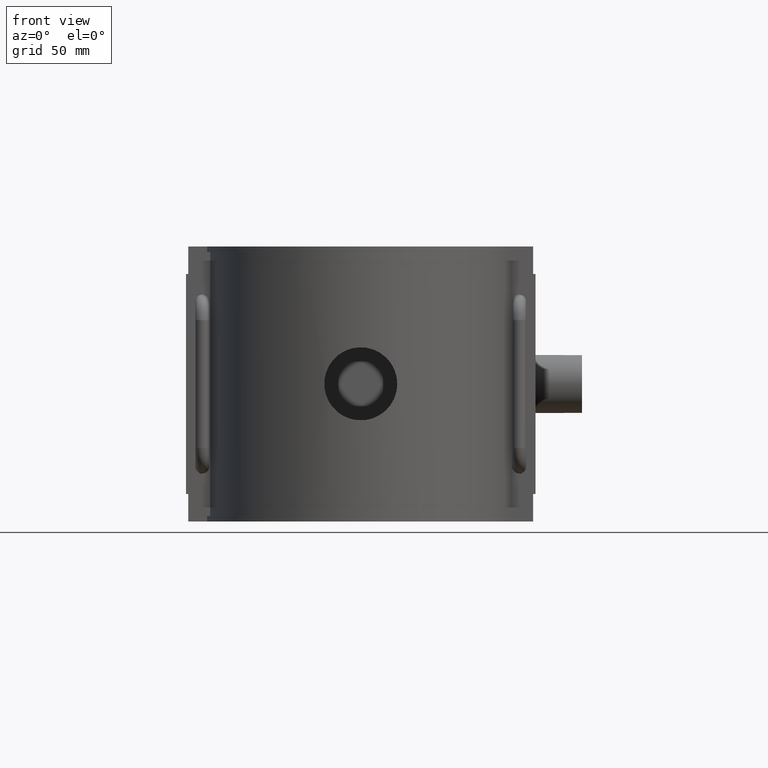
[diagram: clean part render]
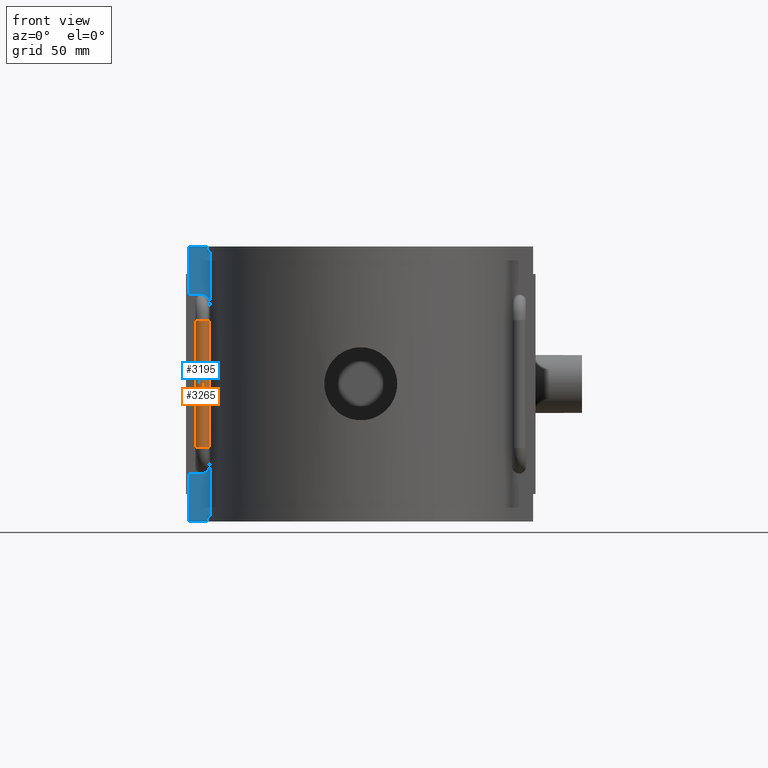
[diagram: same view with the hole feature highlighted: cylindrical wall and planar end face, labeled with their STEP entity ids]
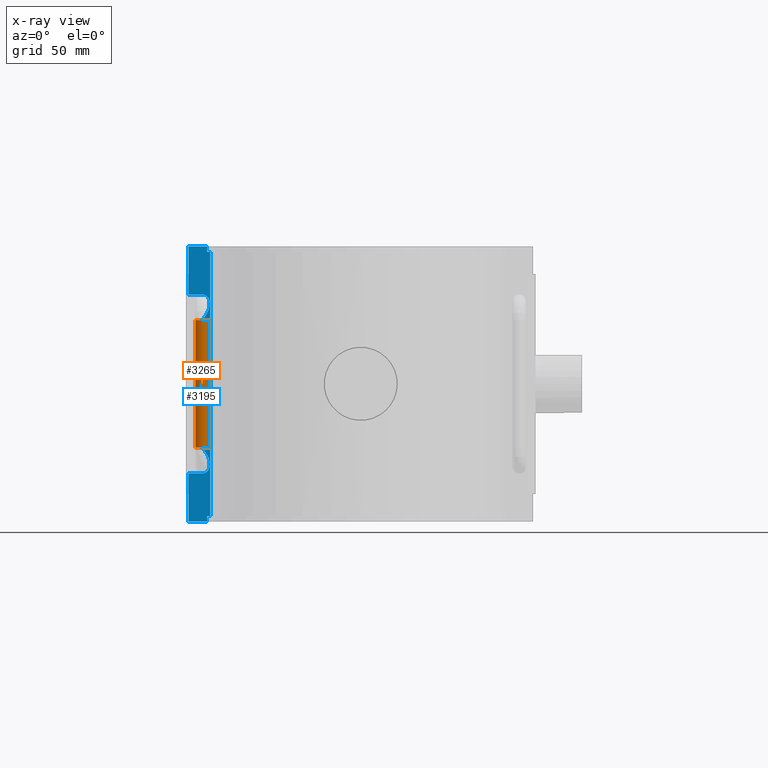
[diagram: x-ray of the same camera — body ghosted, the hole faces saturated]
A machine part, front view. The highlighted faces form one hole feature of diameter 6 mm: the cylindrical wall (entity #3265, orange) and its adjacent planar end face (entity #3195, blue) — they share a circular edge in the B-rep.
The next image is the same camera in x-ray (body ghosted, the hole faces saturated) — the bore reads through the body.
Wall:
#121=LINE('',#5470,#408);
#408=VECTOR('',#3915,54.8);
#805=CIRCLE('',#3509,3.);
#809=CIRCLE('',#3514,3.);
#1023=FACE_OUTER_BOUND('',#1249,.T.);
#1249=EDGE_LOOP('',(#2772,#2773,#2774,#2775));
#1487=VERTEX_POINT('',#5456);
#1488=VERTEX_POINT('',#5469);
#1843=EDGE_CURVE('',#1488,#1487,#121,.T.);
#2006=EDGE_CURVE('',#1488,#1488,#805,.T.);
#2016=EDGE_CURVE('',#1487,#1487,#809,.T.);
#2772=ORIENTED_EDGE('',*,*,#2016,.F.);
#2773=ORIENTED_EDGE('',*,*,#1843,.F.);
#2774=ORIENTED_EDGE('',*,*,#2006,.T.);
#2775=ORIENTED_EDGE('',*,*,#1843,.T.);
#3122=CYLINDRICAL_SURFACE('',#3540,3.);
#3265=ADVANCED_FACE('',(#1023),#3122,.T.);
#3509=AXIS2_PLACEMENT_3D('',#6191,#4185,#4186);
#3514=AXIS2_PLACEMENT_3D('',#6269,#4195,#4196);
#3540=AXIS2_PLACEMENT_3D('',#6352,#4261,#4262);
#3915=DIRECTION('',(0.,-1.62076353959877E-16,1.));
#4185=DIRECTION('center_axis',(0.,6.12323399573677E-17,1.));
#4186=DIRECTION('ref_axis',(1.,0.,0.));
#4195=DIRECTION('center_axis',(0.,6.12323399573677E-17,1.));
#4196=DIRECTION('ref_axis',(1.,0.,0.));
#4261=DIRECTION('center_axis',(0.,-1.62076353959877E-16,1.));
#4262=DIRECTION('ref_axis',(1.,0.,0.));
#5456=CARTESIAN_POINT('',(-68.,-13.75,27.4));
#5469=CARTESIAN_POINT('',(-68.,-13.75,-27.4));
#5470=CARTESIAN_POINT('',(-68.,-13.75,27.4));
#6191=CARTESIAN_POINT('Origin',(-68.,-16.7499999999993,-27.4));
#6269=CARTESIAN_POINT('Origin',(-68.,-16.7499999999993,27.4));
#6352=CARTESIAN_POINT('Origin',(-68.,-16.7499999999993,27.4));
End face:
#108=LINE('',#5426,#395);
#109=LINE('',#5429,#396);
#115=LINE('',#5443,#402);
#116=LINE('',#5445,#403);
#117=LINE('',#5447,#404);
#118=LINE('',#5449,#405);
#119=LINE('',#5451,#406);
#120=LINE('',#5453,#407);
#121=LINE('',#5470,#408);
#122=LINE('',#5487,#409);
#123=LINE('',#5489,#410);
#124=LINE('',#5490,#411);
#395=VECTOR('',#3892,2.36);
#396=VECTOR('',#3895,1.34901356519471);
#402=VECTOR('',#3907,113.28);
#403=VECTOR('',#3908,1.34901356519471);
#404=VECTOR('',#3909,2.36);
#405=VECTOR('',#3910,8.09916616612503);
#406=VECTOR('',#3911,20.6);
#407=VECTOR('',#3912,6.02433467297777);
#408=VECTOR('',#3915,54.8);
#409=VECTOR('',#3918,6.02433467297777);
#410=VECTOR('',#3919,20.6);
#411=VECTOR('',#3920,8.09916616612503);
#645=PLANE('',#3429);
#775=CIRCLE('',#3430,3.);
#776=CIRCLE('',#3431,3.);
#953=FACE_OUTER_BOUND('',#1153,.T.);
#1153=EDGE_LOOP('',(#2420,#2421,#2422,#2423,#2424,#2425,#2426,#2427,#2428,
#2429,#2430,#2431,#2432,#2433,#2434,#2435));
#1344=B_SPLINE_CURVE_WITH_KNOTS('',3,(#5457,#5458,#5459,#5460,#5461,#5462,
#5463,#5464,#5465,#5466,#5467,#5468),.UNSPECIFIED.,.F.,.F.,(4,2,2,2,2,4),
(1.5541826746921,1.64143836729109,1.76844964601288,1.89546092473467,2.1009420105833,
2.30642309643193),.UNSPECIFIED.);
#1345=B_SPLINE_CURVE_WITH_KNOTS('',3,(#5472,#5473,#5474,#5475,#5476,#5477,
#5478,#5479,#5480,#5481,#5482,#5483),.UNSPECIFIED.,.F.,.F.,(4,2,2,2,2,4),
(0.,0.205481085848628,0.410962171697256,0.537973450419046,0.664984729140836,
0.752240421739825),.UNSPECIFIED.);
#1471=VERTEX_POINT('',#5419);
#1474=VERTEX_POINT('',#5424);
#1475=VERTEX_POINT('',#5428);
#1480=VERTEX_POINT('',#5442);
#1481=VERTEX_POINT('',#5444);
#1482=VERTEX_POINT('',#5446);
#1483=VERTEX_POINT('',#5448);
#1484=VERTEX_POINT('',#5450);
#1485=VERTEX_POINT('',#5452);
#1486=VERTEX_POINT('',#5454);
#1487=VERTEX_POINT('',#5456);
#1488=VERTEX_POINT('',#5469);
#1489=VERTEX_POINT('',#5471);
#1490=VERTEX_POINT('',#5484);
#1491=VERTEX_POINT('',#5486);
#1492=VERTEX_POINT('',#5488);
#1827=EDGE_CURVE('',#1471,#1474,#108,.T.);
#1828=EDGE_CURVE('',#1474,#1475,#109,.T.);
#1835=EDGE_CURVE('',#1475,#1480,#115,.T.);
#1836=EDGE_CURVE('',#1480,#1481,#116,.T.);
#1837=EDGE_CURVE('',#1481,#1482,#117,.T.);
#1838=EDGE_CURVE('',#1483,#1482,#118,.T.);
#1839=EDGE_CURVE('',#1484,#1483,#119,.T.);
#1840=EDGE_CURVE('',#1484,#1485,#120,.T.);
#1841=EDGE_CURVE('',#1485,#1486,#775,.T.);
#1842=EDGE_CURVE('',#1486,#1487,#1344,.T.);
#1843=EDGE_CURVE('',#1488,#1487,#121,.T.);
#1844=EDGE_CURVE('',#1488,#1489,#1345,.T.);
#1845=EDGE_CURVE('',#1489,#1490,#776,.T.);
#1846=EDGE_CURVE('',#1490,#1491,#122,.T.);
#1847=EDGE_CURVE('',#1492,#1491,#123,.T.);
#1848=EDGE_CURVE('',#1471,#1492,#124,.T.);
#2420=ORIENTED_EDGE('',*,*,#1827,.T.);
#2421=ORIENTED_EDGE('',*,*,#1828,.T.);
#2422=ORIENTED_EDGE('',*,*,#1835,.T.);
#2423=ORIENTED_EDGE('',*,*,#1836,.T.);
#2424=ORIENTED_EDGE('',*,*,#1837,.T.);
#2425=ORIENTED_EDGE('',*,*,#1838,.F.);
#2426=ORIENTED_EDGE('',*,*,#1839,.F.);
#2427=ORIENTED_EDGE('',*,*,#1840,.T.);
#2428=ORIENTED_EDGE('',*,*,#1841,.T.);
#2429=ORIENTED_EDGE('',*,*,#1842,.T.);
#2430=ORIENTED_EDGE('',*,*,#1843,.F.);
#2431=ORIENTED_EDGE('',*,*,#1844,.T.);
#2432=ORIENTED_EDGE('',*,*,#1845,.T.);
#2433=ORIENTED_EDGE('',*,*,#1846,.T.);
#2434=ORIENTED_EDGE('',*,*,#1847,.F.);
#2435=ORIENTED_EDGE('',*,*,#1848,.F.);
#3195=ADVANCED_FACE('',(#953),#645,.T.);
#3429=AXIS2_PLACEMENT_3D('',#5441,#3905,#3906);
#3430=AXIS2_PLACEMENT_3D('',#5455,#3913,#3914);
#3431=AXIS2_PLACEMENT_3D('',#5485,#3916,#3917);
#3892=DIRECTION('',(0.,0.,1.));
#3895=DIRECTION('',(1.,0.,0.));
#3905=DIRECTION('center_axis',(0.,-1.,0.));
#3906=DIRECTION('ref_axis',(1.,0.,0.));
#3907=DIRECTION('',(0.,0.,1.));
#3908=DIRECTION('',(-1.,0.,0.));
#3909=DIRECTION('',(0.,0.,1.));
#3910=DIRECTION('',(1.,0.,0.));
#3911=DIRECTION('',(0.,0.,1.));
#3912=DIRECTION('',(1.,0.,-7.37158929503087E-16));
#3913=DIRECTION('center_axis',(0.,1.,0.));
#3914=DIRECTION('ref_axis',(-1.,0.,0.));
#3915=DIRECTION('',(0.,-1.62076353959877E-16,1.));
#3916=DIRECTION('center_axis',(0.,1.,0.));
#3917=DIRECTION('ref_axis',(-1.,0.,0.));
#3918=DIRECTION('',(-1.,0.,0.));
#3919=DIRECTION('',(0.,0.,1.));
#3920=DIRECTION('',(-1.,0.,0.));
#5419=CARTESIAN_POINT('',(-65.900833833875,-13.75,-59.));
#5424=CARTESIAN_POINT('',(-65.900833833875,-13.75,-56.64));
#5426=CARTESIAN_POINT('',(-65.900833833875,-13.75,-59.));
#5428=CARTESIAN_POINT('',(-64.5518202686803,-13.75,-56.64));
#5429=CARTESIAN_POINT('',(-37.,-13.75,-56.64));
#5441=CARTESIAN_POINT('Origin',(-74.,-13.75,0.));
#5442=CARTESIAN_POINT('',(-64.5518202686803,-13.75,56.64));
#5443=CARTESIAN_POINT('',(-64.5518202686803,-13.75,0.));
#5444=CARTESIAN_POINT('',(-65.900833833875,-13.75,56.64));
#5445=CARTESIAN_POINT('',(-37.,-13.75,56.64));
#5446=CARTESIAN_POINT('',(-65.900833833875,-13.75,59.));
#5447=CARTESIAN_POINT('',(-65.900833833875,-13.75,59.));
#5448=CARTESIAN_POINT('',(-74.,-13.75,59.));
#5449=CARTESIAN_POINT('',(-74.,-13.75,59.));
#5450=CARTESIAN_POINT('',(-74.,-13.75,38.4));
#5451=CARTESIAN_POINT('',(-74.,-13.75,0.));
#5452=CARTESIAN_POINT('',(-67.9756653270222,-13.75,38.4));
#5453=CARTESIAN_POINT('',(-70.9878326635111,-13.75,38.4));
#5454=CARTESIAN_POINT('',(-65.0929075566291,-13.75,34.5695136140564));
#5455=CARTESIAN_POINT('Origin',(-67.9756653270222,-13.75,35.4));
#5456=CARTESIAN_POINT('',(-68.,-13.75,27.4));
#5457=CARTESIAN_POINT('Ctrl Pts',(-65.092907556629,-13.75,34.5695136140564));
#5458=CARTESIAN_POINT('Ctrl Pts',(-65.0281744318221,-13.75,34.259817704623));
#5459=CARTESIAN_POINT('Ctrl Pts',(-65.,-13.75,33.9358503070612));
#5460=CARTESIAN_POINT('Ctrl Pts',(-65.,-13.75,33.2216270693252));
#5461=CARTESIAN_POINT('Ctrl Pts',(-65.0580680938667,-13.75,32.7627013613539));
#5462=CARTESIAN_POINT('Ctrl Pts',(-65.2771836493012,-13.75,31.867336720585));
#5463=CARTESIAN_POINT('Ctrl Pts',(-65.4370980571854,-13.75,31.4306208843288));
#5464=CARTESIAN_POINT('Ctrl Pts',(-65.889168796984,-13.75,30.41870270221));
#5465=CARTESIAN_POINT('Ctrl Pts',(-66.270333637417,-13.75,29.773838829126));
#5466=CARTESIAN_POINT('Ctrl Pts',(-67.1179526808833,-13.75,28.5365468681762));
#5467=CARTESIAN_POINT('Ctrl Pts',(-67.5805634898982,-13.75,27.9414902061386));
#5468=CARTESIAN_POINT('Ctrl Pts',(-68.,-13.75,27.4));
#5469=CARTESIAN_POINT('',(-68.,-13.75,-27.4));
#5470=CARTESIAN_POINT('',(-68.,-13.75,27.4));
#5471=CARTESIAN_POINT('',(-65.092907556629,-13.75,-34.5695136140564));
#5472=CARTESIAN_POINT('Ctrl Pts',(-68.,-13.75,-27.4));
#5473=CARTESIAN_POINT('Ctrl Pts',(-67.5805634898982,-13.75,-27.9414902061386));
#5474=CARTESIAN_POINT('Ctrl Pts',(-67.1179526808832,-13.75,-28.5365468681762));
#5475=CARTESIAN_POINT('Ctrl Pts',(-66.270333637417,-13.75,-29.773838829126));
#5476=CARTESIAN_POINT('Ctrl Pts',(-65.8891687969839,-13.75,-30.41870270221));
#5477=CARTESIAN_POINT('Ctrl Pts',(-65.4370980571853,-13.75,-31.4306208843288));
#5478=CARTESIAN_POINT('Ctrl Pts',(-65.2771836493012,-13.75,-31.867336720585));
#5479=CARTESIAN_POINT('Ctrl Pts',(-65.0580680938667,-13.75,-32.7627013613539));
#5480=CARTESIAN_POINT('Ctrl Pts',(-65.,-13.75,-33.2216270693252));
#5481=CARTESIAN_POINT('Ctrl Pts',(-65.,-13.75,-33.9358503070612));
#5482=CARTESIAN_POINT('Ctrl Pts',(-65.0281744318221,-13.75,-34.259817704623));
#5483=CARTESIAN_POINT('Ctrl Pts',(-65.092907556629,-13.75,-34.5695136140564));
#5484=CARTESIAN_POINT('',(-67.9756653270222,-13.75,-38.4));
#5485=CARTESIAN_POINT('Origin',(-67.9756653270222,-13.75,-35.4));
#5486=CARTESIAN_POINT('',(-74.,-13.75,-38.4));
#5487=CARTESIAN_POINT('',(-74.,-13.75,-38.4));
#5488=CARTESIAN_POINT('',(-74.,-13.75,-59.));
#5489=CARTESIAN_POINT('',(-74.,-13.75,0.));
#5490=CARTESIAN_POINT('',(-74.,-13.75,-59.));